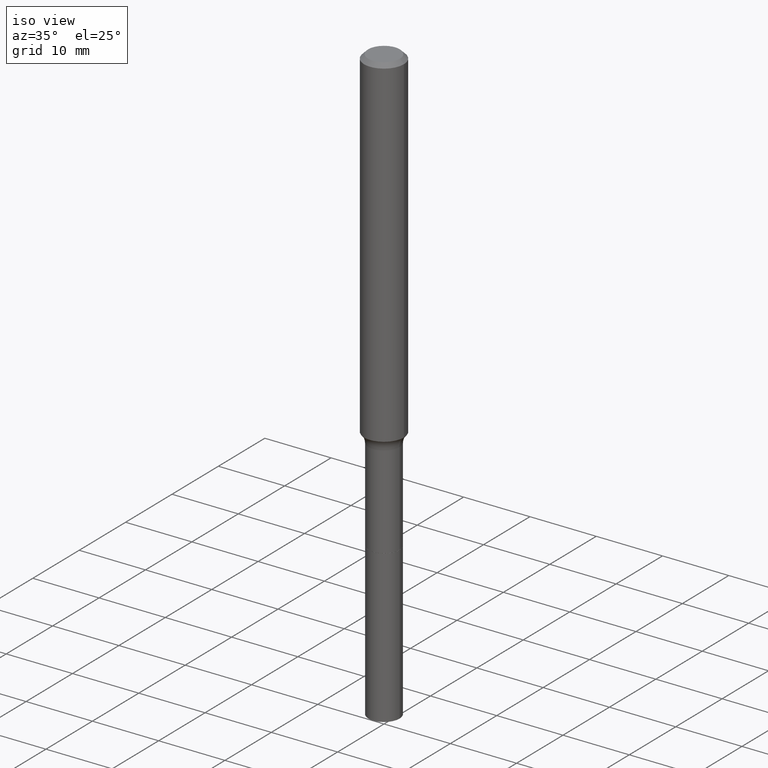
[diagram: clean part render]
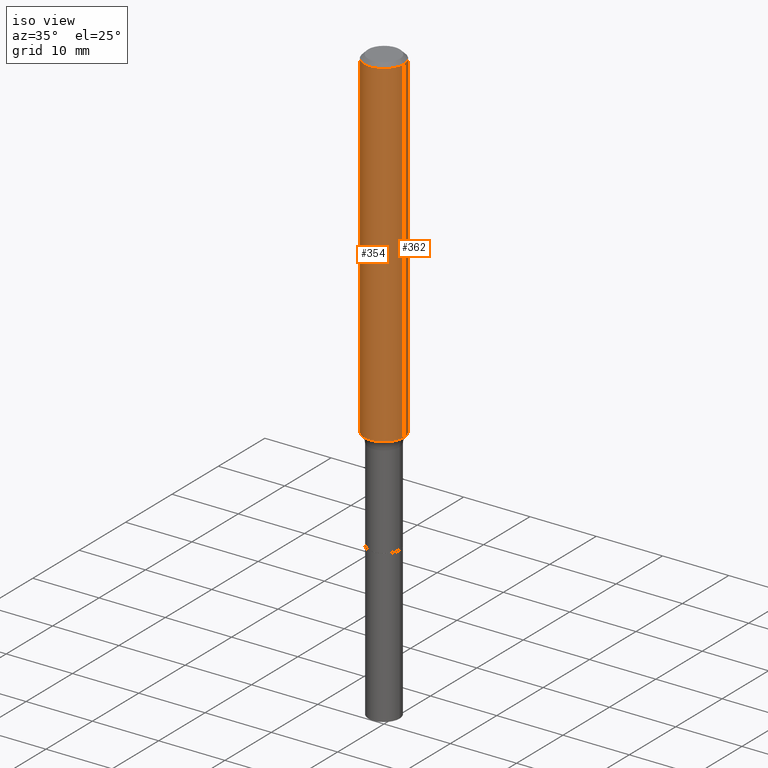
[diagram: same view with one multi-face feature highlighted, each face labeled with its STEP entity id]
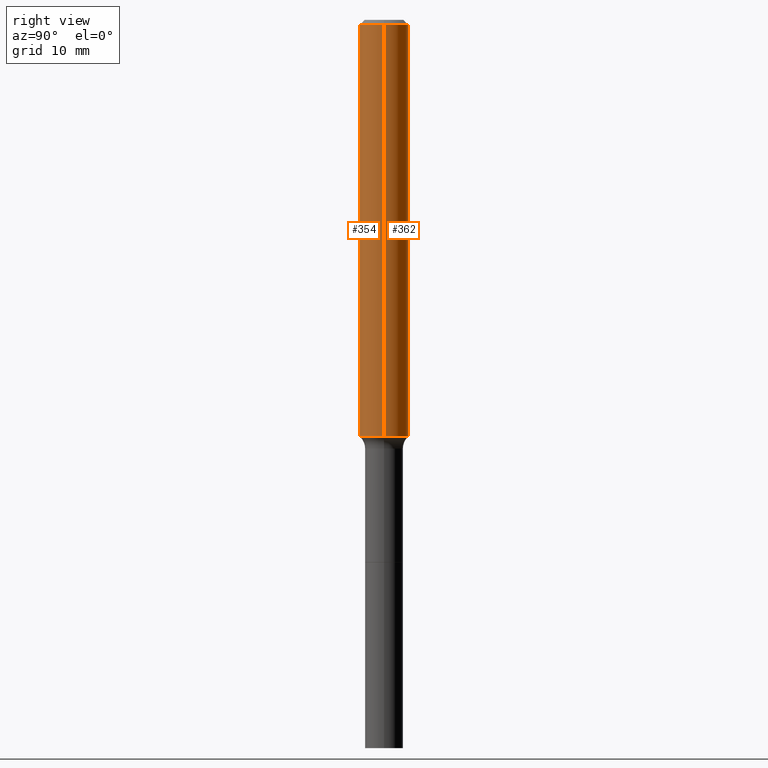
[diagram: same view with one multi-face feature highlighted, each face labeled with its STEP entity id]
A machine part, iso view. The highlighted faces form ONE feature: a constant-radius fillet chain: 2 tangent blend faces with common blend radius 2.9997 mm. The faces share edges in the B-rep.
A second angle (right view) of the same feature is appended — it is thin or edge-on in the first view.
Their STEP definitions:
[1] entity #354 (Cylinder):
#1 = CARTESIAN_POINT ( 'NONE',  ( 0.1181000000000002603, -7.903088546791542426E-15, -2.027334522974172160 ) ) ;
#4 = DIRECTION ( 'NONE',  ( -2.445468806185136597E-29, 3.491481338843145583E-15, 1.000000000000000000 ) ) ;
#16 = CARTESIAN_POINT ( 'NONE',  ( 0.1181000000000001354, -8.246878922347490515E-16, 5.758764772215007447E-30 ) ) ;
#17 = ORIENTED_EDGE ( 'NONE', *, *, #112, .F. ) ;
#20 = VERTEX_POINT ( 'NONE', #370 ) ;
#26 = CARTESIAN_POINT ( 'NONE',  ( 0.000000000000000000, 0.000000000000000000, 0.000000000000000000 ) ) ;
#39 = AXIS2_PLACEMENT_3D ( 'NONE', #451, #4, #481 ) ;
#43 = DIRECTION ( 'NONE',  ( -2.445468806185136877E-29, 3.491481338843145188E-15, 1.000000000000000000 ) ) ;
#69 = CIRCLE ( 'NONE', #376, 0.1181000000000002603 ) ;
#72 = VERTEX_POINT ( 'NONE', #1 ) ;
#88 = CARTESIAN_POINT ( 'NONE',  ( 4.957783335635562174E-29, -7.078400654556792585E-15, -2.027334522974172160 ) ) ;
#112 = EDGE_CURVE ( 'NONE', #20, #114, #449, .T. ) ;
#114 = VERTEX_POINT ( 'NONE', #322 ) ;
#149 = EDGE_CURVE ( 'NONE', #114, #398, #477, .T. ) ;
#156 = LINE ( 'NONE', #16, #315 ) ;
#162 = EDGE_LOOP ( 'NONE', ( #17, #197, #484, #195 ) ) ;
#167 = EDGE_CURVE ( 'NONE', #20, #72, #69, .T. ) ;
#177 = EDGE_CURVE ( 'NONE', #72, #398, #156, .T. ) ;
#195 = ORIENTED_EDGE ( 'NONE', *, *, #149, .F. ) ;
#197 = ORIENTED_EDGE ( 'NONE', *, *, #167, .T. ) ;
#246 = DIRECTION ( 'NONE',  ( -2.445468806185136597E-29, 3.491481338843145583E-15, 1.000000000000000000 ) ) ;
#269 = CARTESIAN_POINT ( 'NONE',  ( 0.1181000000000000105, -9.071566814582239172E-16, -0.02362000000000015823 ) ) ;
#275 = DIRECTION ( 'NONE',  ( -2.445468806185136877E-29, 3.491481338843145188E-15, 1.000000000000000000 ) ) ;
#291 = CARTESIAN_POINT ( 'NONE',  ( -0.1181000000000001354, 8.391509709326792818E-16, -5.809262341591050090E-30 ) ) ;
#302 = FACE_OUTER_BOUND ( 'NONE', #162, .T. ) ;
#315 = VECTOR ( 'NONE', #275, 39.37007874015748143 ) ;
#322 = CARTESIAN_POINT ( 'NONE',  ( -0.1181000000000000105, -2.741283750957453458E-15, -0.02362000000000015823 ) ) ;
#354 = ADVANCED_FACE ( 'NONE', ( #302 ), #427, .T. ) ;
#370 = CARTESIAN_POINT ( 'NONE',  ( -0.1181000000000002603, -6.239249683624112022E-15, -2.027334522974172160 ) ) ;
#371 = DIRECTION ( 'NONE',  ( 1.000000000000000000, -6.982962677686265133E-15, 0.000000000000000000 ) ) ;
#376 = AXIS2_PLACEMENT_3D ( 'NONE', #88, #246, #371 ) ;
#398 = VERTEX_POINT ( 'NONE', #269 ) ;
#423 = AXIS2_PLACEMENT_3D ( 'NONE', #26, #426, #463 ) ;
#426 = DIRECTION ( 'NONE',  ( -2.445468806185136597E-29, 3.491481338843145583E-15, 1.000000000000000000 ) ) ;
#427 = CYLINDRICAL_SURFACE ( 'NONE', #423, 0.1181000000000001354 ) ;
#449 = LINE ( 'NONE', #291, #454 ) ;
#451 = CARTESIAN_POINT ( 'NONE',  ( 5.776197320209331911E-31, -8.246878922347565456E-17, -0.02362000000000015823 ) ) ;
#454 = VECTOR ( 'NONE', #43, 39.37007874015748143 ) ;
#463 = DIRECTION ( 'NONE',  ( 1.000000000000000000, -6.982962677686266711E-15, 4.876176775795936353E-29 ) ) ;
#477 = CIRCLE ( 'NONE', #39, 0.1181000000000000105 ) ;
#481 = DIRECTION ( 'NONE',  ( 1.000000000000000000, -6.982962677686267499E-15, 0.000000000000000000 ) ) ;
#484 = ORIENTED_EDGE ( 'NONE', *, *, #177, .T. ) ;
[2] entity #362 (Cylinder):
#1 = CARTESIAN_POINT ( 'NONE',  ( 0.1181000000000002603, -7.903088546791542426E-15, -2.027334522974172160 ) ) ;
#8 = ORIENTED_EDGE ( 'NONE', *, *, #383, .F. ) ;
#16 = CARTESIAN_POINT ( 'NONE',  ( 0.1181000000000001354, -8.246878922347490515E-16, 5.758764772215007447E-30 ) ) ;
#20 = VERTEX_POINT ( 'NONE', #370 ) ;
#27 = DIRECTION ( 'NONE',  ( -2.445468806185136597E-29, 3.491481338843145583E-15, 1.000000000000000000 ) ) ;
#35 = EDGE_LOOP ( 'NONE', ( #157, #242, #8, #154 ) ) ;
#43 = DIRECTION ( 'NONE',  ( -2.445468806185136877E-29, 3.491481338843145188E-15, 1.000000000000000000 ) ) ;
#53 = DIRECTION ( 'NONE',  ( -2.445468806185136597E-29, 3.491481338843145583E-15, 1.000000000000000000 ) ) ;
#62 = CYLINDRICAL_SURFACE ( 'NONE', #143, 0.1181000000000001354 ) ;
#70 = AXIS2_PLACEMENT_3D ( 'NONE', #331, #53, #211 ) ;
#72 = VERTEX_POINT ( 'NONE', #1 ) ;
#93 = FACE_OUTER_BOUND ( 'NONE', #35, .T. ) ;
#112 = EDGE_CURVE ( 'NONE', #20, #114, #449, .T. ) ;
#114 = VERTEX_POINT ( 'NONE', #322 ) ;
#143 = AXIS2_PLACEMENT_3D ( 'NONE', #219, #27, #179 ) ;
#154 = ORIENTED_EDGE ( 'NONE', *, *, #177, .F. ) ;
#156 = LINE ( 'NONE', #16, #315 ) ;
#157 = ORIENTED_EDGE ( 'NONE', *, *, #286, .T. ) ;
#177 = EDGE_CURVE ( 'NONE', #72, #398, #156, .T. ) ;
#179 = DIRECTION ( 'NONE',  ( 1.000000000000000000, -6.982962677686266711E-15, 4.876176775795936353E-29 ) ) ;
#185 = CIRCLE ( 'NONE', #70, 0.1181000000000000105 ) ;
#211 = DIRECTION ( 'NONE',  ( 1.000000000000000000, -6.982962677686267499E-15, 0.000000000000000000 ) ) ;
#219 = CARTESIAN_POINT ( 'NONE',  ( 0.000000000000000000, 0.000000000000000000, 0.000000000000000000 ) ) ;
#242 = ORIENTED_EDGE ( 'NONE', *, *, #112, .T. ) ;
#269 = CARTESIAN_POINT ( 'NONE',  ( 0.1181000000000000105, -9.071566814582239172E-16, -0.02362000000000015823 ) ) ;
#275 = DIRECTION ( 'NONE',  ( -2.445468806185136877E-29, 3.491481338843145188E-15, 1.000000000000000000 ) ) ;
#286 = EDGE_CURVE ( 'NONE', #72, #20, #343, .T. ) ;
#291 = CARTESIAN_POINT ( 'NONE',  ( -0.1181000000000001354, 8.391509709326792818E-16, -5.809262341591050090E-30 ) ) ;
#298 = DIRECTION ( 'NONE',  ( 1.000000000000000000, -6.982962677686265133E-15, 0.000000000000000000 ) ) ;
#305 = DIRECTION ( 'NONE',  ( -2.445468806185136597E-29, 3.491481338843145583E-15, 1.000000000000000000 ) ) ;
#315 = VECTOR ( 'NONE', #275, 39.37007874015748143 ) ;
#322 = CARTESIAN_POINT ( 'NONE',  ( -0.1181000000000000105, -2.741283750957453458E-15, -0.02362000000000015823 ) ) ;
#331 = CARTESIAN_POINT ( 'NONE',  ( 5.776197320209331911E-31, -8.246878922347565456E-17, -0.02362000000000015823 ) ) ;
#343 = CIRCLE ( 'NONE', #402, 0.1181000000000002603 ) ;
#362 = ADVANCED_FACE ( 'NONE', ( #93 ), #62, .T. ) ;
#370 = CARTESIAN_POINT ( 'NONE',  ( -0.1181000000000002603, -6.239249683624112022E-15, -2.027334522974172160 ) ) ;
#383 = EDGE_CURVE ( 'NONE', #398, #114, #185, .T. ) ;
#398 = VERTEX_POINT ( 'NONE', #269 ) ;
#402 = AXIS2_PLACEMENT_3D ( 'NONE', #467, #305, #298 ) ;
#449 = LINE ( 'NONE', #291, #454 ) ;
#454 = VECTOR ( 'NONE', #43, 39.37007874015748143 ) ;
#467 = CARTESIAN_POINT ( 'NONE',  ( 4.957783335635562174E-29, -7.078400654556792585E-15, -2.027334522974172160 ) ) ;